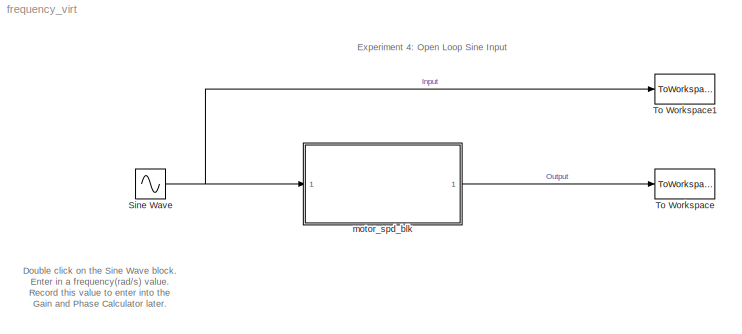
MODEL frequency_virt
KIND model
CONFIG StopFcn = save_system(vars.simfilename);
BLOCK [Sin] Sine Wave
  Amplitude = 1
  Bias = 0
  Frequency = 0.1*2*pi
  Offset = 0
  Phase = 0
  Ports = [0, 1]
  SID = 1
  SampleTime = 0
  Samples = 10
BLOCK [ToWorkspace] To Workspace
  MaxDataPoints = inf
  Ports = [1]
  SID = 2
  SampleTime = -1
  SaveFormat = Structure With Time
  VariableName = output
BLOCK [ToWorkspace] To Workspace1
  MaxDataPoints = inf
  Ports = [1]
  SID = 3
  SampleTime = -1
  SaveFormat = Structure With Time
  VariableName = input
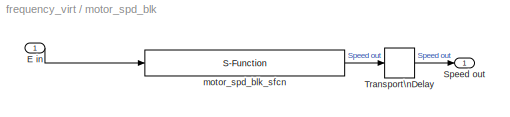
BLOCK [SubSystem] motor_spd_blk
  FunctionWithSeparateData = off
  MaskDescription = Real-Time Workshop generated S-function.
  MaskDisplay = disp('DC Motor (Speed Control)')\n
  MaskHelp = web(['file://',docroot,'/toolbox/rtw/rtwsfcn.html']);
  MaskHideContents = off
  MaskIconFrame = on
  MaskIconOpaque = on
  MaskIconRotate = none
  MaskIconUnits = autoscale
  MaskPortRotate = default
  MinAlgLoopOccurrences = off
  Opaque = off
  Ports = [1, 1]
  PropExecContextOutsideSubsystem = off
  RTWSystemCode = Auto
  RequestExecContextInheritance = off
  SID = 4
BLOCK [Inport] motor_spd_blk/E in
  IconDisplay = Port number
  OutDataType = sfix(16)
  OutScaling = 2^0
  SID = 5
BLOCK [Outport] motor_spd_blk/Speed out
  IconDisplay = Port number
  OutDataType = sfix(16)
  OutScaling = 2^0
  SID = 8
BLOCK [TransportDelay] motor_spd_blk/Transport\nDelay
  DelayTime = 0.001
  SID = 6
BLOCK [S-Function] motor_spd_blk/motor_spd_blk_sfcn
  CopyFcn = set_param(gcb,'linkstatus','none')
  EnableBusSupport = off
  FunctionName = motor_spd_sf
  MaskCallbackString = |
  MaskDescription = Real-Time Workshop generated S-function.
  MaskDisplay = \nport_label('input',1,'E in');\nport_label('output',1,'Speed out');
  MaskEnableString = on,on
  MaskHelp = web(['file://',docroot,'/toolbox/rtw/rtwsfcn.html']);
  MaskIconFrame = on
  MaskIconOpaque = on
  MaskIconRotate = none
  MaskIconUnits = autoscale
  MaskInitialization = displist = '';\nif ~strcmp(get_param(gcb, 'FunctionName'), rtw_sf_name);\n  set_param(gcb, 'FunctionName', rtw_sf_name);\nend\nif  showVar & exist('rtwsfunc') == 2\n  tmplist = rtwsfunc(rtw_sf_name,gcb);\n  tmplist = ['\\nList of Modules:\\n', tmplist];\nelseif showVar\n  tmplist = '\\nList of Modules:\\nRTW not licensed\\n';\nend\nif showVar\n  displist = tmplist;\nend
  MaskPortRotate = default
  MaskPromptString = Generated S-function name (model_sf):|Show module list
  MaskStyleString = edit,checkbox
  MaskToolTipString = on,on
  MaskTunableValueString = on,on
  MaskValueString = motor_spd_sf|off
  MaskVariables = rtw_sf_name=&1;showVar=@2;
  MaskVisibilityString = on,on
  Ports = [1, 1]
  SID = 7
ANNOTATION (root): Double click on the Sine Wave block.\nEnter in a frequency(rad/s) value. \nRecord this value to enter into the \nGain and Phase Calculator later.
ANNOTATION (root): Experiment 4: Open Loop Sine Input
NET Sine Wave:1 -> To Workspace1:1, motor_spd_blk:1
LINE motor_spd_blk/E in:1 -> motor_spd_blk/motor_spd_blk_sfcn:1
LINE motor_spd_blk/Transport\nDelay:1 -> motor_spd_blk/Speed out:1
LINE motor_spd_blk/motor_spd_blk_sfcn:1 -> motor_spd_blk/Transport\nDelay:1
LINE motor_spd_blk:1 -> To Workspace:1
note: NET lines group one-source signal fan-out (src -> all destinations, sorted); 1:1 wires keep LINE
